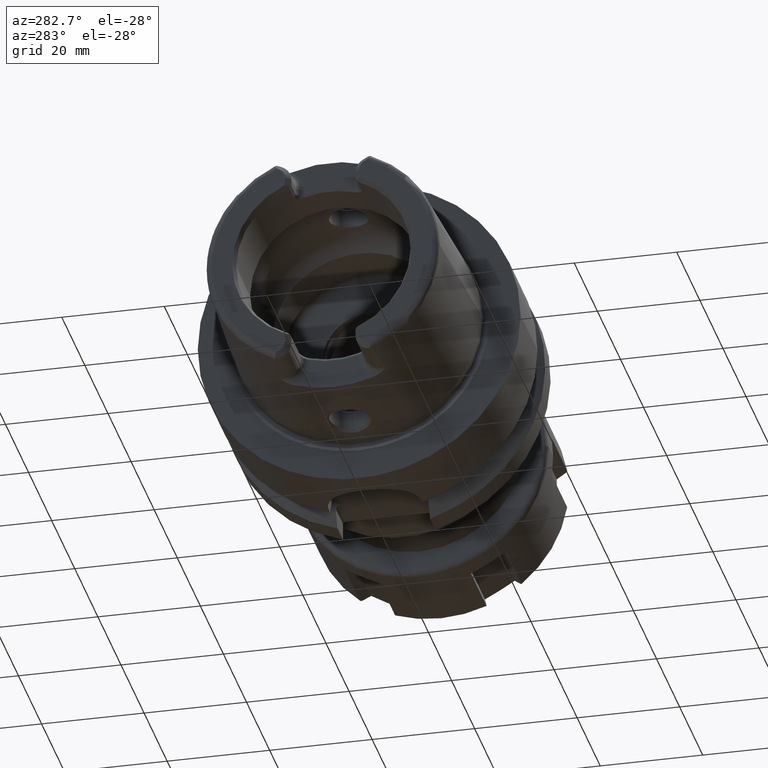
[diagram: clean part render]
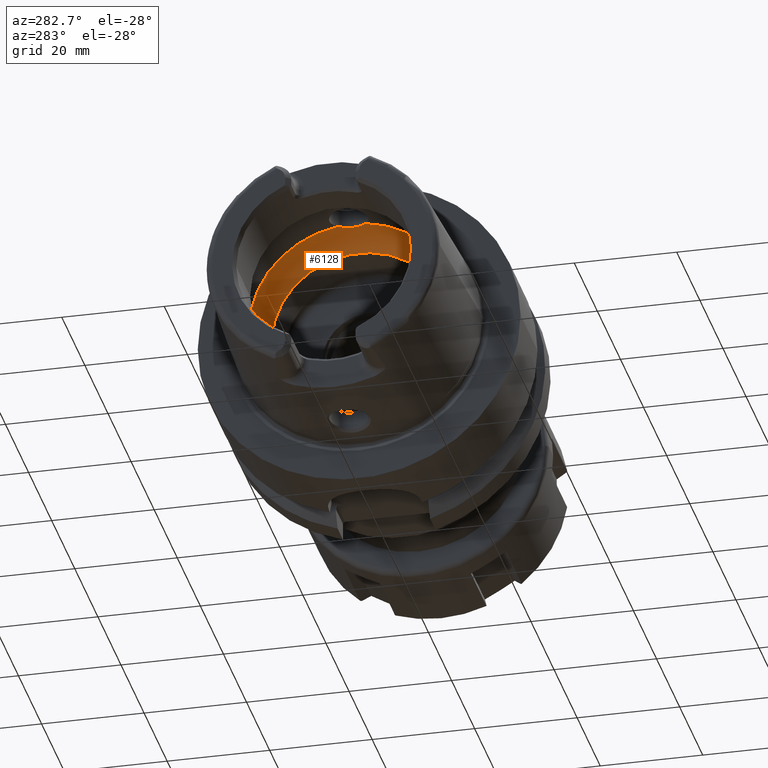
[diagram: same view with one face highlighted and labeled with its STEP entity id]
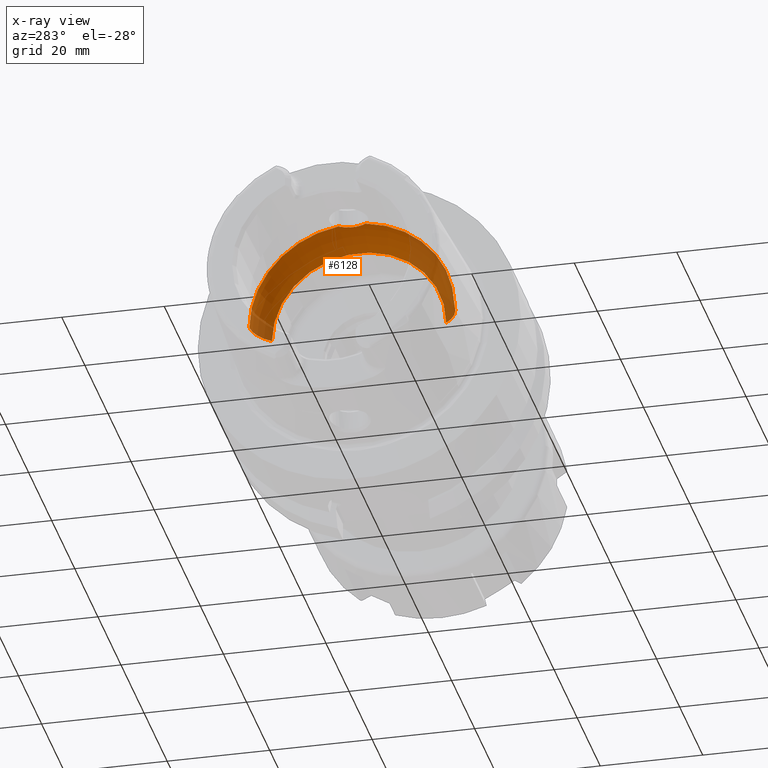
[diagram: x-ray of the same camera — body ghosted, the highlighted face saturated]
A machine part, auxiliary view. The second image highlights one B-rep face of the part: STEP entity #6128.
The next image is the same camera in x-ray: the body ghosted, the highlighted face saturated — about 26% of this face is hidden behind the body in this view.
In plain terms, the highlighted toroidal blend (fillet) surface has major radius 12 mm and minor (blend) radius 8 mm.
Its self-contained STEP definition (entity closure, byte-faithful):
#2325=CARTESIAN_POINT('',(-5.25E0,0.E0,1.992470689575E1));
#2326=CARTESIAN_POINT('',(-5.25E0,1.634249880127E-1,1.992470689575E1));
#2327=CARTESIAN_POINT('',(-5.271317000323E0,4.905125142286E-1,
1.992366860007E1));
#2328=CARTESIAN_POINT('',(-5.367938073203E0,9.753406287590E-1,
1.991846757388E1));
#2329=CARTESIAN_POINT('',(-5.525913254439E0,1.440181253243E0,1.990841194030E1));
#2330=CARTESIAN_POINT('',(-5.745012466850E0,1.883704211740E0,1.989126222791E1));
#2331=CARTESIAN_POINT('',(-6.017092970824E0,2.289932260455E0,1.986481338490E1));
#2332=CARTESIAN_POINT('',(-6.231037578916E0,2.534045566496E0,1.983915065875E1));
#2333=CARTESIAN_POINT('',(-6.344997998398E0,2.648294615690E0,1.982388800484E1));
#2335=CARTESIAN_POINT('',(-6.344997998398E0,-2.648294615690E0,
1.982388800484E1));
#2336=CARTESIAN_POINT('',(-6.231045843136E0,-2.534053851646E0,
1.983914955193E1));
#2337=CARTESIAN_POINT('',(-6.017093742818E0,-2.289943440357E0,
1.986481395775E1));
#2338=CARTESIAN_POINT('',(-5.744901596897E0,-1.883527876206E0,
1.989127237006E1));
#2339=CARTESIAN_POINT('',(-5.525828432433E0,-1.439963272778E0,
1.990841763195E1));
#2340=CARTESIAN_POINT('',(-5.367908372542E0,-9.752317929729E-1,
1.991846926373E1));
#2341=CARTESIAN_POINT('',(-5.271289109403E0,-4.903031116233E-1,
1.992367002777E1));
#2342=CARTESIAN_POINT('',(-5.25E0,-1.633414179458E-1,1.992470689575E1));
#2343=CARTESIAN_POINT('',(-5.25E0,0.E0,1.992470689575E1));
#2345=CARTESIAN_POINT('',(-1.E-1,0.E0,0.E0));
#2346=DIRECTION('',(1.E0,0.E0,0.E0));
#2347=DIRECTION('',(0.E0,1.E0,0.E0));
#2348=AXIS2_PLACEMENT_3D('',#2345,#2346,#2347);
#2370=CARTESIAN_POINT('',(-6.344997998398E0,0.E0,0.E0));
#2371=DIRECTION('',(1.E0,0.E0,0.E0));
#2372=DIRECTION('',(0.E0,1.E0,0.E0));
#2373=AXIS2_PLACEMENT_3D('',#2370,#2371,#2372);
#2375=CARTESIAN_POINT('',(-6.344997998398E0,0.E0,0.E0));
#2376=DIRECTION('',(1.E0,0.E0,0.E0));
#2377=DIRECTION('',(0.E0,-1.324147307845E-1,9.911944002421E-1));
#2378=AXIS2_PLACEMENT_3D('',#2375,#2376,#2377);
#2468=CARTESIAN_POINT('',(-6.344997998398E0,1.2E1,0.E0));
#2469=DIRECTION('',(0.E0,0.E0,1.E0));
#2470=DIRECTION('',(7.806247497998E-1,6.25E-1,0.E0));
#2471=AXIS2_PLACEMENT_3D('',#2468,#2469,#2470);
#2478=CARTESIAN_POINT('',(-6.344997998398E0,-1.2E1,0.E0));
#2479=DIRECTION('',(0.E0,0.E0,-1.E0));
#2480=DIRECTION('',(7.806247497998E-1,-6.25E-1,0.E0));
#2481=AXIS2_PLACEMENT_3D('',#2478,#2479,#2480);
#2747=CARTESIAN_POINT('',(-1.E-1,1.7E1,0.E0));
#2748=VERTEX_POINT('',#2747);
#2749=CARTESIAN_POINT('',(-6.344997998398E0,2.E1,0.E0));
#2750=VERTEX_POINT('',#2749);
#2759=CARTESIAN_POINT('',(-1.E-1,-1.7E1,0.E0));
#2760=VERTEX_POINT('',#2759);
#2761=CARTESIAN_POINT('',(-6.344997998398E0,-2.E1,0.E0));
#2762=VERTEX_POINT('',#2761);
#2930=VERTEX_POINT('',#2325);
#2931=VERTEX_POINT('',#2333);
#2932=VERTEX_POINT('',#2335);
#6109=CARTESIAN_POINT('',(-6.344997998398E0,0.E0,0.E0));
#6110=DIRECTION('',(1.E0,0.E0,0.E0));
#6111=DIRECTION('',(0.E0,-1.E0,0.E0));
#6112=AXIS2_PLACEMENT_3D('',#6109,#6110,#6111);
#6113=TOROIDAL_SURFACE('',#6112,1.2E1,8.E0);
#6114=ORIENTED_EDGE('',*,*,#6086,.F.);
#6115=ORIENTED_EDGE('',*,*,#5852,.F.);
#6117=ORIENTED_EDGE('',*,*,#6116,.T.);
#6119=ORIENTED_EDGE('',*,*,#6118,.F.);
#6121=ORIENTED_EDGE('',*,*,#6120,.F.);
#6123=ORIENTED_EDGE('',*,*,#6122,.T.);
#6125=ORIENTED_EDGE('',*,*,#6124,.T.);
#6126=EDGE_LOOP('',(#6114,#6115,#6117,#6119,#6121,#6123,#6125));
#6127=FACE_OUTER_BOUND('',#6126,.F.);
#6128=ADVANCED_FACE('',(#6127),#6113,.F.);
#2334=B_SPLINE_CURVE_WITH_KNOTS('',3,(#2325,#2326,#2327,#2328,#2329,#2330,#2331,
#2332,#2333),.UNSPECIFIED.,.F.,.F.,(4,1,1,1,1,1,4),(0.E0,1.666666666667E-1,
3.333333333333E-1,5.E-1,6.666666666667E-1,8.333333333333E-1,1.E0),
.UNSPECIFIED.);
#2344=B_SPLINE_CURVE_WITH_KNOTS('',3,(#2335,#2336,#2337,#2338,#2339,#2340,#2341,
#2342,#2343),.UNSPECIFIED.,.F.,.F.,(4,1,1,1,1,1,4),(0.E0,1.666666666667E-1,
3.333333333333E-1,5.E-1,6.666666666667E-1,8.333333333333E-1,1.E0),
.UNSPECIFIED.);
#2349=CIRCLE('',#2348,1.7E1);
#2374=CIRCLE('',#2373,2.E1);
#2379=CIRCLE('',#2378,2.E1);
#2472=CIRCLE('',#2471,8.E0);
#2482=CIRCLE('',#2481,8.E0);
#5852=EDGE_CURVE('',#2932,#2930,#2344,.T.);
#6086=EDGE_CURVE('',#2930,#2931,#2334,.T.);
#6116=EDGE_CURVE('',#2932,#2762,#2379,.T.);
#6118=EDGE_CURVE('',#2760,#2762,#2482,.T.);
#6120=EDGE_CURVE('',#2748,#2760,#2349,.T.);
#6122=EDGE_CURVE('',#2748,#2750,#2472,.T.);
#6124=EDGE_CURVE('',#2750,#2931,#2374,.T.);